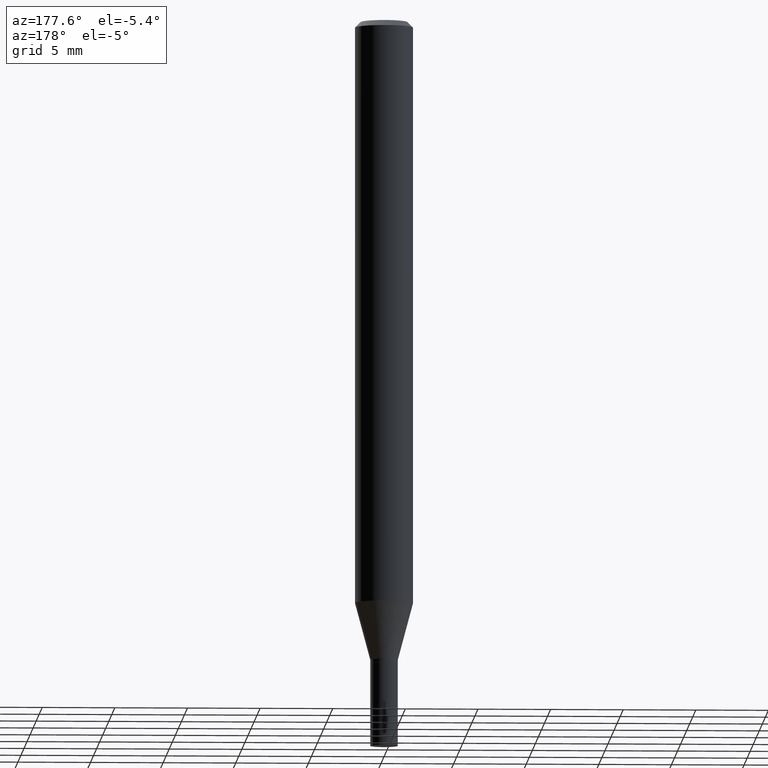
[diagram: clean part render]
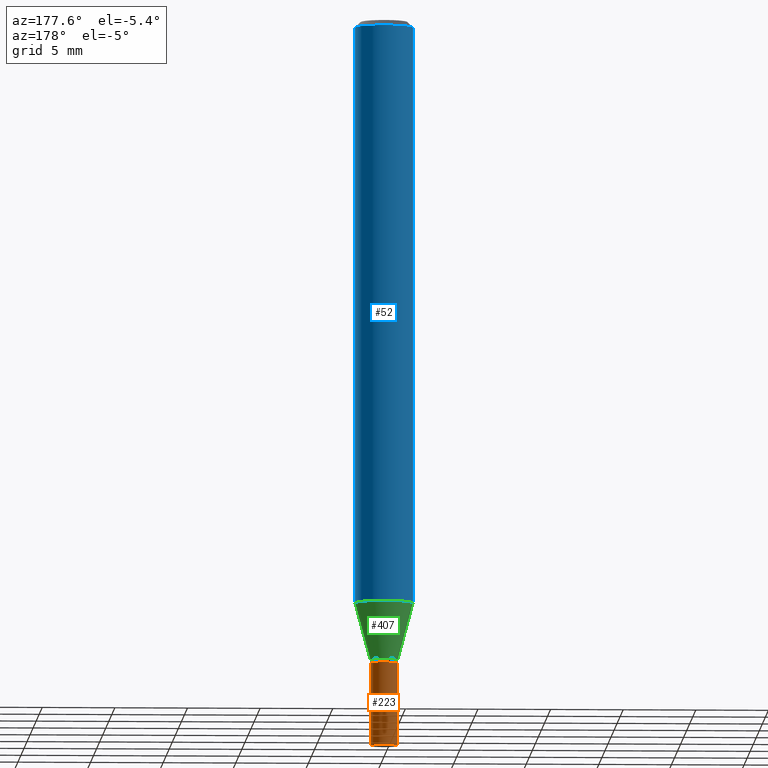
[diagram: same view with three faces highlighted in distinct colors, each labeled with its STEP entity id]
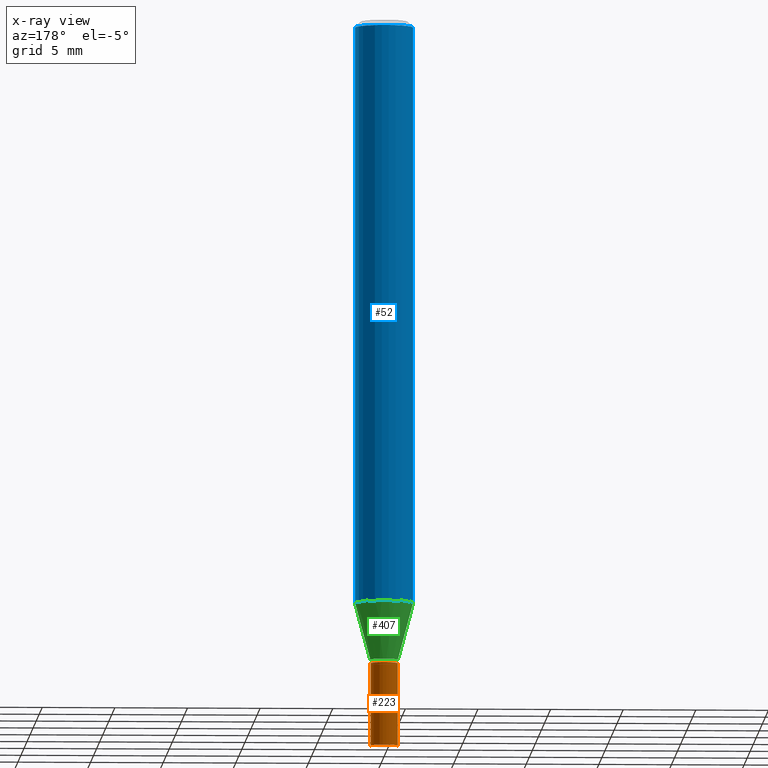
[diagram: x-ray of the same camera — body ghosted, the three highlighted faces saturated]
A machine part, auxiliary view with three faces highlighted in distinct colors.
The next image is the same camera in x-ray (body ghosted, the three faces saturated) — at least one of them is partly hidden behind the body in this view.
Their STEP definitions:

[orange] entity #223 — the highlighted cylindrical surface (edge-blend (fillet) strip) has radius 0.95 mm, axis along (-0, 0, 1).
#24 = CARTESIAN_POINT ( 'NONE',  ( -0.03740000000000000269, -6.215493826120253928E-15, -1.744100000000000206 ) ) ;
#49 = CARTESIAN_POINT ( 'NONE',  ( 4.813905344975441835E-29, -6.872981015512731707E-15, -1.968500000000000139 ) ) ;
#57 = DIRECTION ( 'NONE',  ( -2.445468806185136597E-29, 3.491481338843145583E-15, 1.000000000000000000 ) ) ;
#68 = CARTESIAN_POINT ( 'NONE',  ( 0.03740000000000000269, -2.611628041454664002E-16, 1.823690114147680082E-30 ) ) ;
#70 = AXIS2_PLACEMENT_3D ( 'NONE', #450, #418, #219 ) ;
#89 = CARTESIAN_POINT ( 'NONE',  ( -0.03740000000000000269, 2.657429831742774886E-16, -1.839681723755335040E-30 ) ) ;
#91 = CIRCLE ( 'NONE', #211, 0.03740000000000000269 ) ;
#99 = ORIENTED_EDGE ( 'NONE', *, *, #200, .T. ) ;
#120 = EDGE_LOOP ( 'NONE', ( #172, #99, #267, #425 ) ) ;
#131 = LINE ( 'NONE', #68, #228 ) ;
#134 = CARTESIAN_POINT ( 'NONE',  ( -0.03740000000000000269, -6.215493826120253928E-15, -1.968500000000000139 ) ) ;
#135 = VERTEX_POINT ( 'NONE', #175 ) ;
#149 = FACE_OUTER_BOUND ( 'NONE', #120, .T. ) ;
#156 = CARTESIAN_POINT ( 'NONE',  ( 4.265142144867497014E-29, -6.089492603076330929E-15, -1.744100000000000206 ) ) ;
#172 = ORIENTED_EDGE ( 'NONE', *, *, #293, .T. ) ;
#175 = CARTESIAN_POINT ( 'NONE',  ( 0.03740000000000000269, -6.350655407221797329E-15, -1.744100000000000206 ) ) ;
#190 = DIRECTION ( 'NONE',  ( -2.445468806185136877E-29, 3.491481338843145188E-15, 1.000000000000000000 ) ) ;
#200 = EDGE_CURVE ( 'NONE', #322, #403, #227, .T. ) ;
#211 = AXIS2_PLACEMENT_3D ( 'NONE', #49, #261, #303 ) ;
#219 = DIRECTION ( 'NONE',  ( 1.000000000000000000, -6.982962677686266711E-15, 4.876176775795935793E-29 ) ) ;
#223 = ADVANCED_FACE ( 'NONE', ( #149 ), #444, .T. ) ;
#227 = LINE ( 'NONE', #89, #253 ) ;
#228 = VECTOR ( 'NONE', #315, 39.37007874015748143 ) ;
#253 = VECTOR ( 'NONE', #190, 39.37007874015748143 ) ;
#259 = DIRECTION ( 'NONE',  ( 1.000000000000000000, -6.982962677686274599E-15, 0.000000000000000000 ) ) ;
#261 = DIRECTION ( 'NONE',  ( -2.445468806185136597E-29, 3.491481338843145583E-15, 1.000000000000000000 ) ) ;
#267 = ORIENTED_EDGE ( 'NONE', *, *, #282, .F. ) ;
#272 = CARTESIAN_POINT ( 'NONE',  ( 0.03740000000000000269, -7.134143819658198107E-15, -1.968500000000000139 ) ) ;
#282 = EDGE_CURVE ( 'NONE', #135, #403, #440, .T. ) ;
#293 = EDGE_CURVE ( 'NONE', #448, #322, #91, .T. ) ;
#303 = DIRECTION ( 'NONE',  ( 1.000000000000000000, -6.982962677686274599E-15, 0.000000000000000000 ) ) ;
#315 = DIRECTION ( 'NONE',  ( -2.445468806185136877E-29, 3.491481338843145188E-15, 1.000000000000000000 ) ) ;
#317 = AXIS2_PLACEMENT_3D ( 'NONE', #156, #57, #259 ) ;
#322 = VERTEX_POINT ( 'NONE', #134 ) ;
#375 = EDGE_CURVE ( 'NONE', #448, #135, #131, .T. ) ;
#403 = VERTEX_POINT ( 'NONE', #24 ) ;
#418 = DIRECTION ( 'NONE',  ( -2.445468806185136597E-29, 3.491481338843145583E-15, 1.000000000000000000 ) ) ;
#425 = ORIENTED_EDGE ( 'NONE', *, *, #375, .F. ) ;
#440 = CIRCLE ( 'NONE', #317, 0.03740000000000000269 ) ;
#444 = CYLINDRICAL_SURFACE ( 'NONE', #70, 0.03740000000000000269 ) ;
#448 = VERTEX_POINT ( 'NONE', #272 ) ;
#450 = CARTESIAN_POINT ( 'NONE',  ( 0.000000000000000000, 0.000000000000000000, 0.000000000000000000 ) ) ;

[blue] entity #52 — the highlighted cylindrical surface (edge-blend (fillet) strip) has radius 2.0002 mm, axis along (-0, 0, 1).
#11 = CARTESIAN_POINT ( 'NONE',  ( -0.07875000000000000056, -4.957615527039885735E-15, -1.580179699107028268 ) ) ;
#26 = CARTESIAN_POINT ( 'NONE',  ( 3.864280162333252269E-29, -5.517167931450965325E-15, -1.580179699107028268 ) ) ;
#46 = CARTESIAN_POINT ( 'NONE',  ( 0.07875000000000000056, -5.499083108677934443E-16, 3.839989210939299016E-30 ) ) ;
#52 = ADVANCED_FACE ( 'NONE', ( #181 ), #79, .T. ) ;
#65 = CARTESIAN_POINT ( 'NONE',  ( 3.668203209277705088E-31, -5.237222008264718399E-17, -0.01499999999999999944 ) ) ;
#76 = CIRCLE ( 'NONE', #453, 0.07875000000000000056 ) ;
#79 = CYLINDRICAL_SURFACE ( 'NONE', #451, 0.07875000000000000056 ) ;
#87 = ORIENTED_EDGE ( 'NONE', *, *, #356, .T. ) ;
#94 = VERTEX_POINT ( 'NONE', #11 ) ;
#97 = DIRECTION ( 'NONE',  ( -2.445468806185136597E-29, 3.491481338843145583E-15, 1.000000000000000000 ) ) ;
#100 = CARTESIAN_POINT ( 'NONE',  ( 0.07875000000000000056, -6.067076242318758671E-15, -1.580179699107028268 ) ) ;
#104 = EDGE_LOOP ( 'NONE', ( #150, #87, #420, #170 ) ) ;
#114 = EDGE_CURVE ( 'NONE', #357, #424, #402, .T. ) ;
#129 = DIRECTION ( 'NONE',  ( 1.000000000000000000, -6.982962677686265922E-15, 0.000000000000000000 ) ) ;
#150 = ORIENTED_EDGE ( 'NONE', *, *, #415, .T. ) ;
#166 = LINE ( 'NONE', #275, #246 ) ;
#170 = ORIENTED_EDGE ( 'NONE', *, *, #114, .F. ) ;
#181 = FACE_OUTER_BOUND ( 'NONE', #104, .T. ) ;
#204 = CIRCLE ( 'NONE', #220, 0.07875000000000000056 ) ;
#215 = CARTESIAN_POINT ( 'NONE',  ( 0.000000000000000000, 0.000000000000000000, 0.000000000000000000 ) ) ;
#216 = DIRECTION ( 'NONE',  ( 1.000000000000000000, -6.982962677686265922E-15, 4.876176775795935232E-29 ) ) ;
#220 = AXIS2_PLACEMENT_3D ( 'NONE', #26, #97, #308 ) ;
#243 = VERTEX_POINT ( 'NONE', #381 ) ;
#246 = VECTOR ( 'NONE', #431, 39.37007874015748143 ) ;
#257 = DIRECTION ( 'NONE',  ( -2.445468806185136877E-29, 3.491481338843145188E-15, 1.000000000000000000 ) ) ;
#275 = CARTESIAN_POINT ( 'NONE',  ( -0.07875000000000000056, 5.595524044110789003E-16, -3.873661383575737792E-30 ) ) ;
#288 = DIRECTION ( 'NONE',  ( -2.445468806185136597E-29, 3.491481338843145583E-15, 1.000000000000000000 ) ) ;
#308 = DIRECTION ( 'NONE',  ( 1.000000000000000000, -6.982962677686261977E-15, 0.000000000000000000 ) ) ;
#344 = DIRECTION ( 'NONE',  ( -2.445468806185136597E-29, 3.491481338843145583E-15, 1.000000000000000000 ) ) ;
#356 = EDGE_CURVE ( 'NONE', #94, #243, #166, .T. ) ;
#357 = VERTEX_POINT ( 'NONE', #100 ) ;
#363 = VECTOR ( 'NONE', #257, 39.37007874015748143 ) ;
#381 = CARTESIAN_POINT ( 'NONE',  ( -0.07875000000000000056, -2.225217671355727598E-15, -0.01499999999999999944 ) ) ;
#389 = CARTESIAN_POINT ( 'NONE',  ( 0.07875000000000000056, -6.022805309504406221E-16, -0.01499999999999999944 ) ) ;
#393 = EDGE_CURVE ( 'NONE', #424, #243, #76, .T. ) ;
#402 = LINE ( 'NONE', #46, #363 ) ;
#415 = EDGE_CURVE ( 'NONE', #357, #94, #204, .T. ) ;
#420 = ORIENTED_EDGE ( 'NONE', *, *, #393, .F. ) ;
#424 = VERTEX_POINT ( 'NONE', #389 ) ;
#431 = DIRECTION ( 'NONE',  ( -2.445468806185136877E-29, 3.491481338843145188E-15, 1.000000000000000000 ) ) ;
#451 = AXIS2_PLACEMENT_3D ( 'NONE', #215, #288, #216 ) ;
#453 = AXIS2_PLACEMENT_3D ( 'NONE', #65, #344, #129 ) ;

[green] entity #407 — the highlighted conical surface has half-angle 15 deg.
#11 = CARTESIAN_POINT ( 'NONE',  ( -0.07875000000000000056, -4.957615527039885735E-15, -1.580179699107028268 ) ) ;
#19 = VECTOR ( 'NONE', #201, 39.37007874015748143 ) ;
#26 = CARTESIAN_POINT ( 'NONE',  ( 3.864280162333252269E-29, -5.517167931450965325E-15, -1.580179699107028268 ) ) ;
#28 = ORIENTED_EDGE ( 'NONE', *, *, #109, .F. ) ;
#30 = ORIENTED_EDGE ( 'NONE', *, *, #415, .F. ) ;
#33 = DIRECTION ( 'NONE',  ( -2.445468806185136597E-29, 3.491481338843145583E-15, 1.000000000000000000 ) ) ;
#35 = ORIENTED_EDGE ( 'NONE', *, *, #399, .T. ) ;
#36 = AXIS2_PLACEMENT_3D ( 'NONE', #455, #353, #423 ) ;
#94 = VERTEX_POINT ( 'NONE', #11 ) ;
#97 = DIRECTION ( 'NONE',  ( -2.445468806185136597E-29, 3.491481338843145583E-15, 1.000000000000000000 ) ) ;
#100 = CARTESIAN_POINT ( 'NONE',  ( 0.07875000000000000056, -6.067076242318758671E-15, -1.580179699107028268 ) ) ;
#101 = VERTEX_POINT ( 'NONE', #145 ) ;
#108 = CARTESIAN_POINT ( 'NONE',  ( 0.03740000000000019698, -6.317137186368903672E-15, -1.734499999999999931 ) ) ;
#109 = EDGE_CURVE ( 'NONE', #101, #357, #324, .T. ) ;
#145 = CARTESIAN_POINT ( 'NONE',  ( 0.03740000000000019698, -6.317137186368903672E-15, -1.734499999999999931 ) ) ;
#147 = CONICAL_SURFACE ( 'NONE', #379, 0.03740000000000019698, 0.2617993877991502405 ) ;
#163 = CARTESIAN_POINT ( 'NONE',  ( 4.241665644328119485E-29, -6.055974382223435694E-15, -1.734499999999999931 ) ) ;
#201 = DIRECTION ( 'NONE',  ( -0.2588190451025215166, 5.211531920934551042E-15, 0.9659258262890679791 ) ) ;
#204 = CIRCLE ( 'NONE', #220, 0.07875000000000000056 ) ;
#220 = AXIS2_PLACEMENT_3D ( 'NONE', #26, #97, #308 ) ;
#231 = CARTESIAN_POINT ( 'NONE',  ( -0.03740000000000019698, -5.373923463044521625E-15, -1.734499999999999931 ) ) ;
#233 = LINE ( 'NONE', #459, #19 ) ;
#245 = VECTOR ( 'NONE', #291, 39.37007874015748143 ) ;
#273 = ORIENTED_EDGE ( 'NONE', *, *, #374, .T. ) ;
#291 = DIRECTION ( 'NONE',  ( 0.2588190451025215166, 1.565188264969620784E-15, 0.9659258262890679791 ) ) ;
#308 = DIRECTION ( 'NONE',  ( 1.000000000000000000, -6.982962677686261977E-15, 0.000000000000000000 ) ) ;
#320 = VERTEX_POINT ( 'NONE', #231 ) ;
#324 = LINE ( 'NONE', #108, #245 ) ;
#345 = DIRECTION ( 'NONE',  ( 1.000000000000000000, -6.982962677686265133E-15, 0.000000000000000000 ) ) ;
#353 = DIRECTION ( 'NONE',  ( -2.445468806185136597E-29, 3.491481338843145583E-15, 1.000000000000000000 ) ) ;
#357 = VERTEX_POINT ( 'NONE', #100 ) ;
#374 = EDGE_CURVE ( 'NONE', #320, #94, #233, .T. ) ;
#379 = AXIS2_PLACEMENT_3D ( 'NONE', #163, #33, #345 ) ;
#385 = FACE_OUTER_BOUND ( 'NONE', #465, .T. ) ;
#399 = EDGE_CURVE ( 'NONE', #101, #320, #461, .T. ) ;
#407 = ADVANCED_FACE ( 'NONE', ( #385 ), #147, .T. ) ;
#415 = EDGE_CURVE ( 'NONE', #357, #94, #204, .T. ) ;
#423 = DIRECTION ( 'NONE',  ( 1.000000000000000000, -6.982962677686265133E-15, 0.000000000000000000 ) ) ;
#455 = CARTESIAN_POINT ( 'NONE',  ( 4.241665644328119485E-29, -6.055974382223435694E-15, -1.734499999999999931 ) ) ;
#459 = CARTESIAN_POINT ( 'NONE',  ( -0.03740000000000019698, -5.790231399049156726E-15, -1.734499999999999931 ) ) ;
#461 = CIRCLE ( 'NONE', #36, 0.03740000000000019698 ) ;
#465 = EDGE_LOOP ( 'NONE', ( #35, #273, #30, #28 ) ) ;